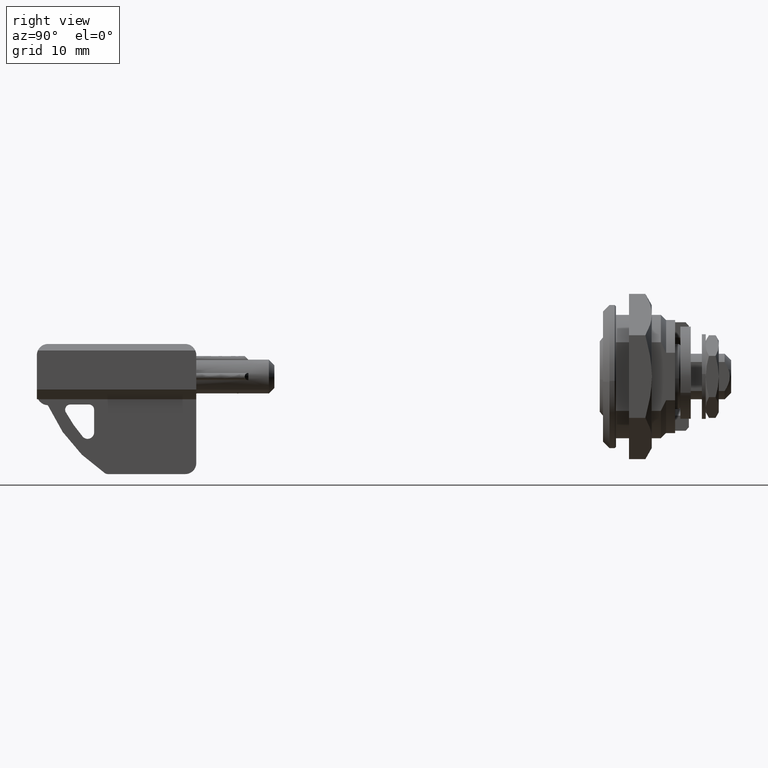
[diagram: clean part render]
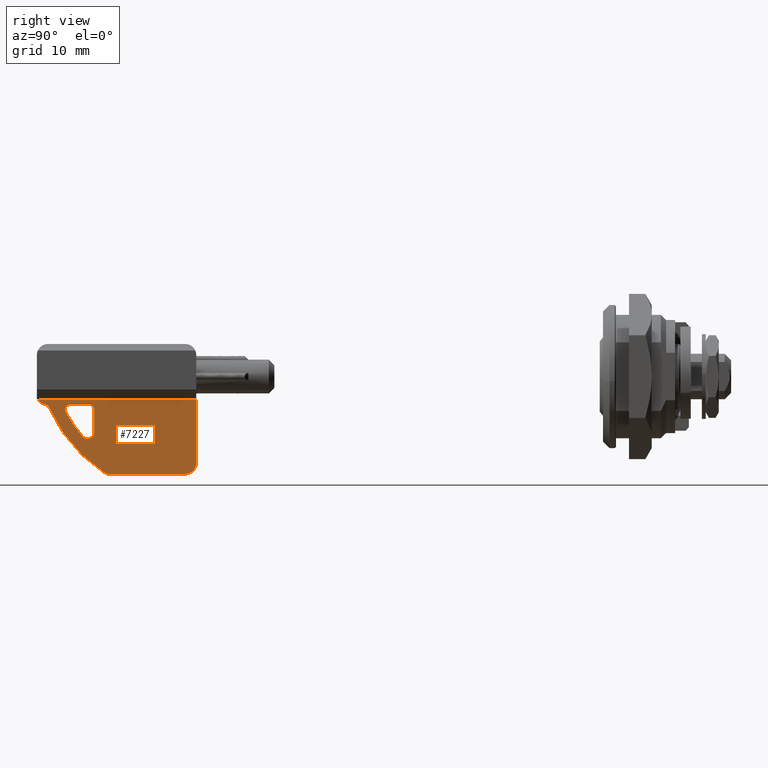
[diagram: same view with one face highlighted and labeled with its STEP entity id]
A machine part, right view. The second image highlights one B-rep face of the part: STEP entity #7227.
In plain terms, the highlighted face is a freeform B-spline surface patch.
Its self-contained STEP definition (entity closure, byte-faithful):
#5922=CARTESIAN_POINT('',(2.499999999999940,-81.957008043144981,-9.235001828766380));
#5923=VERTEX_POINT('',#5922);
#5924=CARTESIAN_POINT('',(2.499999999999940,-80.199999999999989,-8.581596000000001));
#5925=VERTEX_POINT('',#5924);
#5926=CARTESIAN_POINT('',(2.499999999999940,-81.957008043144981,-9.235001828766380));
#5927=CARTESIAN_POINT('',(2.499999999999940,-81.866188971684409,-9.340499425300575));
#5928=CARTESIAN_POINT('',(2.499999999999938,-81.670412288173310,-9.488931319492213));
#5929=CARTESIAN_POINT('',(2.499999999999945,-81.363696848561858,-9.580182731851732));
#5930=CARTESIAN_POINT('',(2.499999999999935,-81.083591815018480,-9.586783016598869));
#5931=CARTESIAN_POINT('',(2.499999999999944,-80.772859197331854,-9.510184950733176));
#5932=CARTESIAN_POINT('',(2.499999999999945,-80.495924391893453,-9.319626166186986));
#5933=CARTESIAN_POINT('',(2.499999999999938,-80.263918490296760,-8.998830150570631));
#5934=CARTESIAN_POINT('',(2.499999999999943,-80.199682339986879,-8.746184630044509));
#5935=CARTESIAN_POINT('',(2.499999999999940,-80.199999999999989,-8.581596000000001));
#5936=B_SPLINE_CURVE_WITH_KNOTS('',3,(#5926,#5927,#5928,#5929,#5930,#5931,#5932,#5933,#5934,#5935),.UNSPECIFIED.,.F.,.U.,(4,1,1,1,1,1,1,4),(0.000001352552662,0.417562349907654,0.721314002719600,0.949095261170092,1.252714530454988,1.670367329909151,1.936139605763232,2.429663858420166),.UNSPECIFIED.);
#5937=EDGE_CURVE('',#5923,#5925,#5936,.T.);
#5983=CARTESIAN_POINT('',(2.499999999999994,-88.799999999999983,-3.500000000000000));
#5984=VERTEX_POINT('',#5983);
#5985=CARTESIAN_POINT('',(2.499999999999940,-87.471533265765402,-4.391323842064490));
#5986=VERTEX_POINT('',#5985);
#5987=CARTESIAN_POINT('',(2.499999999999939,-88.799999999999983,-3.500000000000000));
#5988=CARTESIAN_POINT('',(2.499999999999939,-88.373410180786834,-4.299855911024627));
#5989=CARTESIAN_POINT('',(2.499999999999940,-87.471533265765402,-4.391323842064510));
#5997=(BOUNDED_CURVE()B_SPLINE_CURVE(2,(#5987,#5988,#5989),.UNSPECIFIED.,.F.,.U.)CURVE()GEOMETRIC_REPRESENTATION_ITEM()QUASI_UNIFORM_CURVE()RATIONAL_B_SPLINE_CURVE((1.0,0.882388133837359,1.0))REPRESENTATION_ITEM(''));
#5998=EDGE_CURVE('',#5984,#5986,#5997,.T.);
#6044=CARTESIAN_POINT('',(2.499999999999940,-87.226755953311425,-4.570006867697241));
#6045=VERTEX_POINT('',#6044);
#6046=CARTESIAN_POINT('',(2.499999999999940,-87.226755953311340,-4.570006867697209));
#6047=CARTESIAN_POINT('',(2.499999999999940,-87.296858836974337,-4.409039240187018));
#6048=CARTESIAN_POINT('',(2.499999999999940,-87.471533265765402,-4.391323842064485));
#6056=(BOUNDED_CURVE()B_SPLINE_CURVE(2,(#6046,#6047,#6048),.UNSPECIFIED.,.F.,.U.)CURVE()GEOMETRIC_REPRESENTATION_ITEM()QUASI_UNIFORM_CURVE()RATIONAL_B_SPLINE_CURVE((1.0,0.863063734704756,1.0))REPRESENTATION_ITEM(''));
#6057=EDGE_CURVE('',#6045,#5986,#6056,.T.);
#6097=CARTESIAN_POINT('',(2.499999999999940,-84.555536504158994,-5.483119652173880));
#6098=VERTEX_POINT('',#6097);
#6099=CARTESIAN_POINT('',(2.499999999999940,-84.555536504158852,-5.483119652173821));
#6100=CARTESIAN_POINT('',(2.499999999999940,-83.456509435962914,-7.497743657664030));
#6101=CARTESIAN_POINT('',(2.499999999999940,-81.957008043144981,-9.235001828766379));
#6109=(BOUNDED_CURVE()B_SPLINE_CURVE(2,(#6099,#6100,#6101),.UNSPECIFIED.,.F.,.U.)CURVE()GEOMETRIC_REPRESENTATION_ITEM()QUASI_UNIFORM_CURVE()RATIONAL_B_SPLINE_CURVE((1.0,0.994351551563336,1.0))REPRESENTATION_ITEM(''));
#6110=EDGE_CURVE('',#6098,#5923,#6109,.T.);
#6150=CARTESIAN_POINT('',(2.499999999999940,-83.853240745864809,-4.299999999999955));
#6151=VERTEX_POINT('',#6150);
#6152=CARTESIAN_POINT('',(2.499999999999940,-83.853240745864809,-4.299999999999955));
#6153=CARTESIAN_POINT('',(2.499999999999939,-83.965397654994007,-4.299850634036949));
#6154=CARTESIAN_POINT('',(2.499999999999948,-84.155048081361201,-4.340586988692372));
#6155=CARTESIAN_POINT('',(2.499999999999934,-84.397799876598583,-4.494882983613459));
#6156=CARTESIAN_POINT('',(2.499999999999955,-84.596845629478452,-4.739793993156424));
#6157=CARTESIAN_POINT('',(2.499999999999925,-84.687412977689632,-5.103158483076241));
#6158=CARTESIAN_POINT('',(2.499999999999950,-84.617681091303695,-5.369612899925248));
#6159=CARTESIAN_POINT('',(2.499999999999940,-84.555536504158994,-5.483119652173880));
#6160=B_SPLINE_CURVE_WITH_KNOTS('',3,(#6152,#6153,#6154,#6155,#6156,#6157,#6158,#6159),.UNSPECIFIED.,.F.,.U.,(4,1,1,1,1,4),(0.000000982795535,0.336412779371855,0.569366105461312,0.853909083277699,1.268052152319339,1.656229839694335),.UNSPECIFIED.);
#6161=EDGE_CURVE('',#6151,#6098,#6160,.T.);
#6190=CARTESIAN_POINT('',(2.499999999999940,-81.0,-4.299999999999955));
#6191=VERTEX_POINT('',#6190);
#6192=CARTESIAN_POINT('',(2.499999999999940,-81.0,-4.299999999999955));
#6193=CARTESIAN_POINT('',(2.499999999999940,-83.853240745864809,-4.299999999999955));
#6194=QUASI_UNIFORM_CURVE('',1,(#6192,#6193),.UNSPECIFIED.,.F.,.U.);
#6195=EDGE_CURVE('',#6191,#6151,#6194,.T.);
#6227=CARTESIAN_POINT('',(2.499999999999940,-80.199999999999989,-5.100000000000001));
#6228=VERTEX_POINT('',#6227);
#6229=CARTESIAN_POINT('',(2.499999999999940,-80.199999999999989,-5.100000000000001));
#6230=CARTESIAN_POINT('',(2.499999999999941,-80.200000000000003,-4.300000000000001));
#6231=CARTESIAN_POINT('',(2.499999999999940,-81.0,-4.300000000000000));
#6239=(BOUNDED_CURVE()B_SPLINE_CURVE(2,(#6229,#6230,#6231),.UNSPECIFIED.,.F.,.U.)CURVE()GEOMETRIC_REPRESENTATION_ITEM()QUASI_UNIFORM_CURVE()RATIONAL_B_SPLINE_CURVE((1.0,0.707106781186548,1.0))REPRESENTATION_ITEM(''));
#6240=EDGE_CURVE('',#6228,#6191,#6239,.T.);
#6271=CARTESIAN_POINT('',(2.499999999999940,-80.199999999999989,-8.581596000000001));
#6272=CARTESIAN_POINT('',(2.499999999999940,-80.199999999999989,-5.100000000000001));
#6273=QUASI_UNIFORM_CURVE('',1,(#6271,#6272),.UNSPECIFIED.,.F.,.U.);
#6274=EDGE_CURVE('',#5925,#6228,#6273,.T.);
#6593=CARTESIAN_POINT('',(2.499999999999996,-64.500000000000000,-3.500000000000000));
#6594=VERTEX_POINT('',#6593);
#6609=CARTESIAN_POINT('',(2.499999999999994,-88.799999999999983,-3.500000000000000));
#6610=CARTESIAN_POINT('',(2.499999999999996,-64.500000000000000,-3.500000000000000));
#6611=QUASI_UNIFORM_CURVE('',1,(#6609,#6610),.UNSPECIFIED.,.F.,.U.);
#6612=EDGE_CURVE('',#5984,#6594,#6611,.T.);
#7152=CARTESIAN_POINT('',(2.499999999999994,-90.013784952901858,-2.925575022289232));
#7153=CARTESIAN_POINT('',(2.499999999999996,-63.286214395321323,-2.925575022289232));
#7154=CARTESIAN_POINT('',(2.499999999999994,-90.013784952901858,-15.574425286164800));
#7155=CARTESIAN_POINT('',(2.499999999999996,-63.286214395321323,-15.574425286164800));
#7156=B_SPLINE_SURFACE_WITH_KNOTS('',1,1,((#7152,#7154),(#7153,#7155)),.UNSPECIFIED.,.F.,.F.,.U.,(2,2),(2,2),(0.0,26.727570557580538),(0.0,12.648850263875570),.UNSPECIFIED.);
#7157=ORIENTED_EDGE('',*,*,#6057,.F.);
#7158=CARTESIAN_POINT('',(2.499999999999940,-78.571352254903388,-14.836143171498939));
#7159=VERTEX_POINT('',#7158);
#7160=CARTESIAN_POINT('',(2.499999999999940,-87.226755953311340,-4.570006867697209));
#7161=CARTESIAN_POINT('',(2.499999999999940,-84.429361154121125,-10.993280497922338));
#7162=CARTESIAN_POINT('',(2.499999999999940,-78.571352490228719,-14.836143530225741));
#7170=(BOUNDED_CURVE()B_SPLINE_CURVE(2,(#7160,#7161,#7162),.UNSPECIFIED.,.F.,.U.)CURVE()GEOMETRIC_REPRESENTATION_ITEM()QUASI_UNIFORM_CURVE()RATIONAL_B_SPLINE_CURVE((1.0,0.958318853204988,1.0))REPRESENTATION_ITEM(''));
#7171=EDGE_CURVE('',#6045,#7159,#7170,.T.);
#7172=ORIENTED_EDGE('',*,*,#7171,.T.);
#7173=CARTESIAN_POINT('',(2.499999999999940,-78.022841000000000,-15.0));
#7174=VERTEX_POINT('',#7173);
#7175=CARTESIAN_POINT('',(2.499999999999940,-78.571352254903388,-14.836143171498950));
#7176=CARTESIAN_POINT('',(2.499999999999941,-78.321571111800381,-15.000000000000004));
#7177=CARTESIAN_POINT('',(2.499999999999940,-78.022841000000000,-15.0));
#7185=(BOUNDED_CURVE()B_SPLINE_CURVE(2,(#7175,#7176,#7177),.UNSPECIFIED.,.F.,.U.)CURVE()GEOMETRIC_REPRESENTATION_ITEM()QUASI_UNIFORM_CURVE()RATIONAL_B_SPLINE_CURVE((1.0,0.958160521911372,1.0))REPRESENTATION_ITEM(''));
#7186=EDGE_CURVE('',#7159,#7174,#7185,.T.);
#7187=ORIENTED_EDGE('',*,*,#7186,.T.);
#7188=CARTESIAN_POINT('',(2.499999999999941,-66.200000000000003,-15.0));
#7189=VERTEX_POINT('',#7188);
#7190=CARTESIAN_POINT('',(2.499999999999941,-66.200000000000003,-15.0));
#7191=CARTESIAN_POINT('',(2.499999999999940,-78.022841000000000,-15.0));
#7192=QUASI_UNIFORM_CURVE('',1,(#7190,#7191),.UNSPECIFIED.,.F.,.U.);
#7193=EDGE_CURVE('',#7189,#7174,#7192,.T.);
#7194=ORIENTED_EDGE('',*,*,#7193,.F.);
#7195=CARTESIAN_POINT('',(2.499999999999941,-64.500000000000000,-13.300000000000001));
#7196=VERTEX_POINT('',#7195);
#7197=CARTESIAN_POINT('',(2.499999999999941,-66.200000000000003,-15.0));
#7198=CARTESIAN_POINT('',(2.499999999999941,-64.500000000000000,-14.999999999999995));
#7199=CARTESIAN_POINT('',(2.499999999999941,-64.500000000000014,-13.300000000000001));
#7207=(BOUNDED_CURVE()B_SPLINE_CURVE(2,(#7197,#7198,#7199),.UNSPECIFIED.,.F.,.U.)CURVE()GEOMETRIC_REPRESENTATION_ITEM()QUASI_UNIFORM_CURVE()RATIONAL_B_SPLINE_CURVE((1.0,0.707106781186548,1.0))REPRESENTATION_ITEM(''));
#7208=EDGE_CURVE('',#7189,#7196,#7207,.T.);
#7209=ORIENTED_EDGE('',*,*,#7208,.T.);
#7210=CARTESIAN_POINT('',(2.499999999999996,-64.500000000000000,-3.500000000000000));
#7211=CARTESIAN_POINT('',(2.499999999999941,-64.500000000000000,-13.300000000000001));
#7212=QUASI_UNIFORM_CURVE('',1,(#7210,#7211),.UNSPECIFIED.,.F.,.U.);
#7213=EDGE_CURVE('',#6594,#7196,#7212,.T.);
#7214=ORIENTED_EDGE('',*,*,#7213,.F.);
#7215=ORIENTED_EDGE('',*,*,#6612,.F.);
#7216=ORIENTED_EDGE('',*,*,#5998,.T.);
#7217=EDGE_LOOP('',(#7157,#7172,#7187,#7194,#7209,#7214,#7215,#7216));
#7218=FACE_OUTER_BOUND('',#7217,.T.);
#7219=ORIENTED_EDGE('',*,*,#6274,.F.);
#7220=ORIENTED_EDGE('',*,*,#5937,.F.);
#7221=ORIENTED_EDGE('',*,*,#6110,.F.);
#7222=ORIENTED_EDGE('',*,*,#6161,.F.);
#7223=ORIENTED_EDGE('',*,*,#6195,.F.);
#7224=ORIENTED_EDGE('',*,*,#6240,.F.);
#7225=EDGE_LOOP('',(#7219,#7220,#7221,#7222,#7223,#7224));
#7226=FACE_BOUND('',#7225,.T.);
#7227=ADVANCED_FACE('',(#7218,#7226),#7156,.F.);